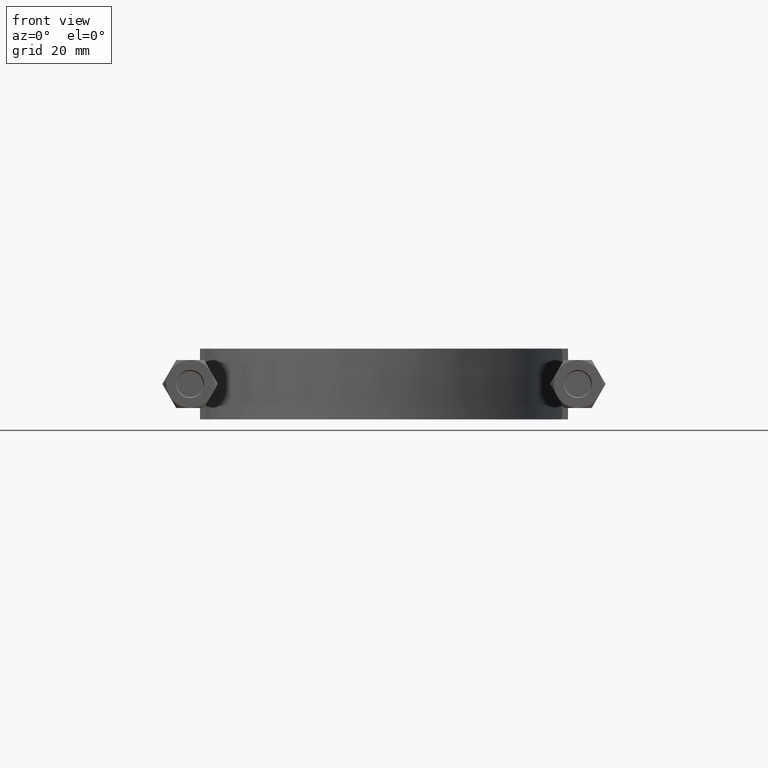
[diagram: clean part render]
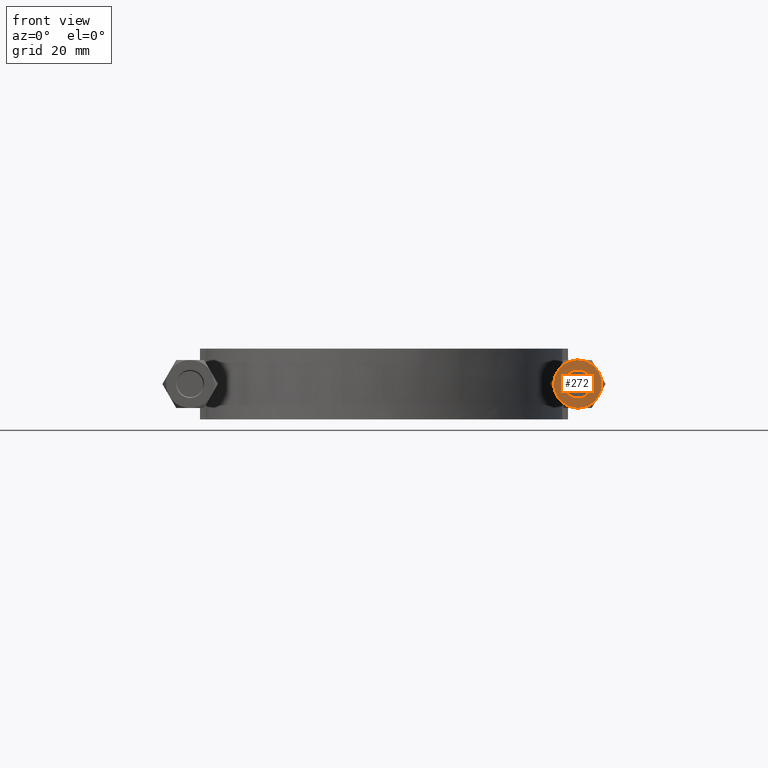
[diagram: same view with one face highlighted and labeled with its STEP entity id]
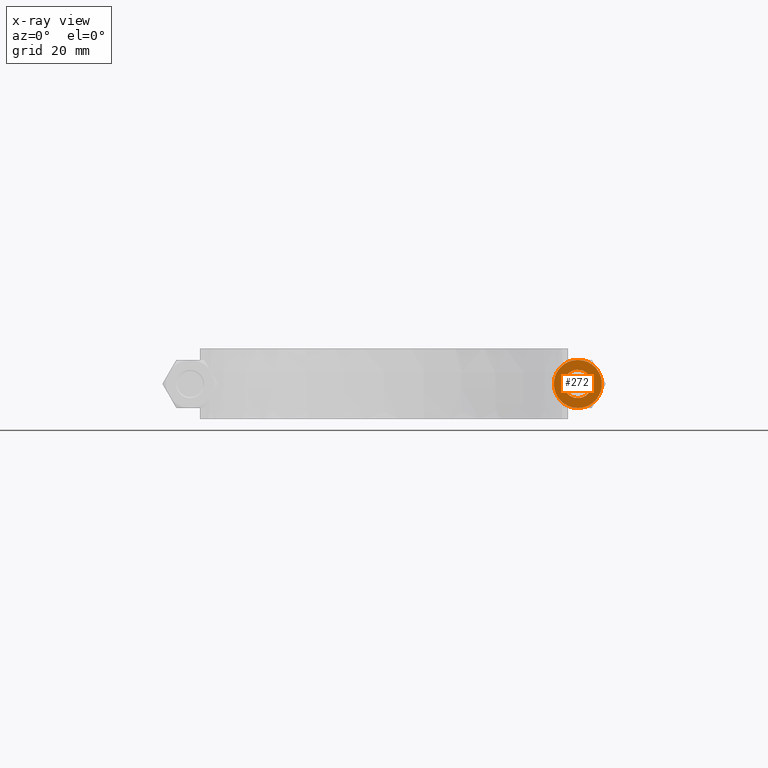
[diagram: x-ray of the same camera — body ghosted, the highlighted face saturated]
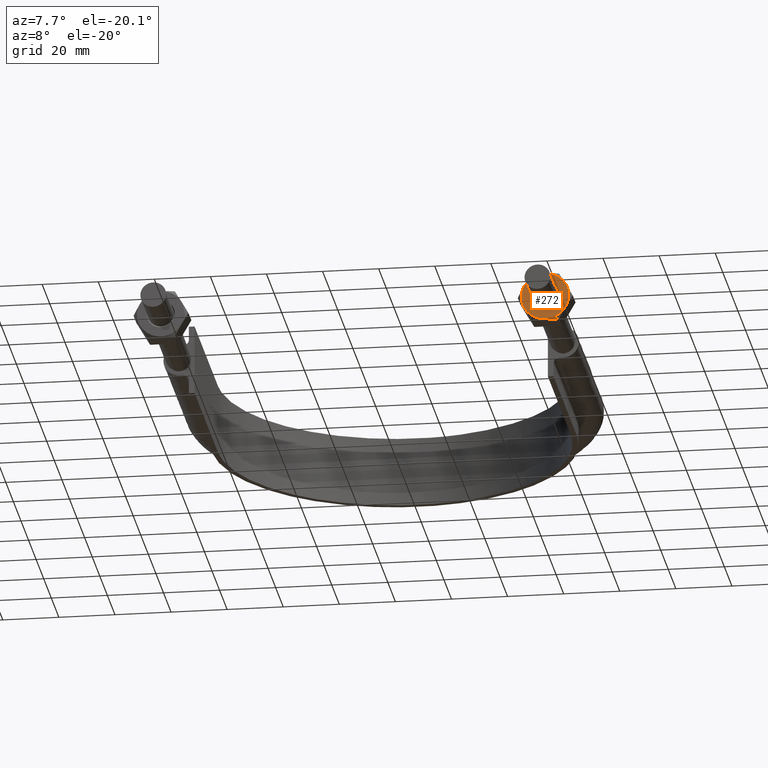
[diagram: same view with one face highlighted and labeled with its STEP entity id]
A machine part, front view. The second image highlights one B-rep face of the part: STEP entity #272.
The next image is the same camera in x-ray: the body ghosted, the highlighted face saturated — about 0% of this face is hidden behind the body in this view.
A second angle (auxiliary view) of the same face is appended — the face is thin or edge-on in the first view.
In plain terms, the highlighted planar face has unit normal (0, 1, 0).
Its self-contained STEP definition (entity closure, byte-faithful):
#272 = ADVANCED_FACE( '', ( #413, #414 ), #415, .F. );
#413 = FACE_OUTER_BOUND( '', #1235, .T. );
#414 = FACE_BOUND( '', #1236, .T. );
#415 = PLANE( '', #1237 );
#1235 = EDGE_LOOP( '', ( #1651, #1652, #1653, #1654, #1655, #1656 ) );
#1236 = EDGE_LOOP( '', ( #1657 ) );
#1237 = AXIS2_PLACEMENT_3D( '', #1658, #1659, #1660 );
#1651 = ORIENTED_EDGE( '', *, *, #1919, .F. );
#1652 = ORIENTED_EDGE( '', *, *, #1920, .F. );
#1653 = ORIENTED_EDGE( '', *, *, #1921, .F. );
#1654 = ORIENTED_EDGE( '', *, *, #1922, .F. );
#1655 = ORIENTED_EDGE( '', *, *, #1917, .F. );
#1656 = ORIENTED_EDGE( '', *, *, #1923, .F. );
#1657 = ORIENTED_EDGE( '', *, *, #1924, .T. );
#1658 = CARTESIAN_POINT( '', ( 68.5000000000001, 20.0000000000000, 3.60204487764859E-015 ) );
#1659 = DIRECTION( '', ( 1.22460635382238E-016, 1.00000000000000, 1.83690953073357E-016 ) );
#1660 = DIRECTION( '', ( -0.866025403784439, 1.42085446679230E-017, 0.500000000000000 ) );
#1917 = EDGE_CURVE( '', #2130, #2132, #2133, .T. );
#1919 = EDGE_CURVE( '', #2135, #2136, #2137, .T. );
#1920 = EDGE_CURVE( '', #2138, #2135, #2139, .T. );
#1921 = EDGE_CURVE( '', #2140, #2138, #2141, .T. );
#1922 = EDGE_CURVE( '', #2132, #2140, #2142, .T. );
#1923 = EDGE_CURVE( '', #2136, #2130, #2143, .T. );
#1924 = EDGE_CURVE( '', #2144, #2144, #2145, .T. );
#2130 = VERTEX_POINT( '', #2702 );
#2132 = VERTEX_POINT( '', #2709 );
#2133 = CIRCLE( '', #2710, 8.50000000000000 );
#2135 = VERTEX_POINT( '', #2719 );
#2136 = VERTEX_POINT( '', #2720 );
#2137 = CIRCLE( '', #2721, 8.50000000000000 );
#2138 = VERTEX_POINT( '', #2722 );
#2139 = CIRCLE( '', #2723, 8.50000000000000 );
#2140 = VERTEX_POINT( '', #2724 );
#2141 = CIRCLE( '', #2725, 8.50000000000000 );
#2142 = CIRCLE( '', #2726, 8.50000000000000 );
#2143 = CIRCLE( '', #2727, 8.50000000000000 );
#2144 = VERTEX_POINT( '', #2728 );
#2145 = CIRCLE( '', #2729, 5.00000000000000 );
#2702 = CARTESIAN_POINT( '', ( 75.8612159321678, 20.0000000000000, -4.24999999999999 ) );
#2709 = CARTESIAN_POINT( '', ( 68.5000000000001, 20.0000000000000, -8.49999999999999 ) );
#2710 = AXIS2_PLACEMENT_3D( '', #3024, #3025, #3026 );
#2719 = CARTESIAN_POINT( '', ( 68.5000000000001, 20.0000000000000, 8.50000000000000 ) );
#2720 = CARTESIAN_POINT( '', ( 75.8612159321678, 20.0000000000000, 4.25000000000000 ) );
#2721 = AXIS2_PLACEMENT_3D( '', #3027, #3028, #3029 );
#2722 = CARTESIAN_POINT( '', ( 61.1387840678323, 20.0000000000000, 4.25000000000000 ) );
#2723 = AXIS2_PLACEMENT_3D( '', #3030, #3031, #3032 );
#2724 = CARTESIAN_POINT( '', ( 61.1387840678323, 20.0000000000000, -4.25000000000000 ) );
#2725 = AXIS2_PLACEMENT_3D( '', #3033, #3034, #3035 );
#2726 = AXIS2_PLACEMENT_3D( '', #3036, #3037, #3038 );
#2727 = AXIS2_PLACEMENT_3D( '', #3039, #3040, #3041 );
#2728 = CARTESIAN_POINT( '', ( 64.1698729810779, 20.0000000000000, 2.50000000000000 ) );
#2729 = AXIS2_PLACEMENT_3D( '', #3042, #3043, #3044 );
#3024 = CARTESIAN_POINT( '', ( 68.5000000000001, 20.0000000000000, 3.60204487764859E-015 ) );
#3025 = DIRECTION( '', ( 1.22460635382238E-016, 1.00000000000000, 1.83690953073357E-016 ) );
#3026 = DIRECTION( '', ( -0.866025403784439, 1.42085446679230E-017, 0.500000000000000 ) );
#3027 = CARTESIAN_POINT( '', ( 68.5000000000001, 20.0000000000000, 3.60204487764859E-015 ) );
#3028 = DIRECTION( '', ( 1.22460635382238E-016, 1.00000000000000, 1.83690953073357E-016 ) );
#3029 = DIRECTION( '', ( -0.866025403784439, 1.42085446679230E-017, 0.500000000000000 ) );
#3030 = CARTESIAN_POINT( '', ( 68.5000000000001, 20.0000000000000, 3.60204487764859E-015 ) );
#3031 = DIRECTION( '', ( 1.22460635382238E-016, 1.00000000000000, 1.83690953073357E-016 ) );
#3032 = DIRECTION( '', ( -0.866025403784439, 1.42085446679230E-017, 0.500000000000000 ) );
#3033 = CARTESIAN_POINT( '', ( 68.5000000000001, 20.0000000000000, 3.60204487764859E-015 ) );
#3034 = DIRECTION( '', ( 1.22460635382238E-016, 1.00000000000000, 1.83690953073357E-016 ) );
#3035 = DIRECTION( '', ( -0.866025403784439, 1.42085446679230E-017, 0.500000000000000 ) );
#3036 = CARTESIAN_POINT( '', ( 68.5000000000001, 20.0000000000000, 3.60204487764859E-015 ) );
#3037 = DIRECTION( '', ( 1.22460635382238E-016, 1.00000000000000, 1.83690953073357E-016 ) );
#3038 = DIRECTION( '', ( -0.866025403784439, 1.42085446679230E-017, 0.500000000000000 ) );
#3039 = CARTESIAN_POINT( '', ( 68.5000000000001, 20.0000000000000, 3.60204487764859E-015 ) );
#3040 = DIRECTION( '', ( 1.22460635382238E-016, 1.00000000000000, 1.83690953073357E-016 ) );
#3041 = DIRECTION( '', ( -0.866025403784439, 1.42085446679230E-017, 0.500000000000000 ) );
#3042 = CARTESIAN_POINT( '', ( 68.5000000000001, 20.0000000000000, 3.60204487764859E-015 ) );
#3043 = DIRECTION( '', ( 1.22460635382238E-016, 1.00000000000000, 1.83690953073357E-016 ) );
#3044 = DIRECTION( '', ( -0.866025403784439, 1.42085446679230E-017, 0.500000000000000 ) );